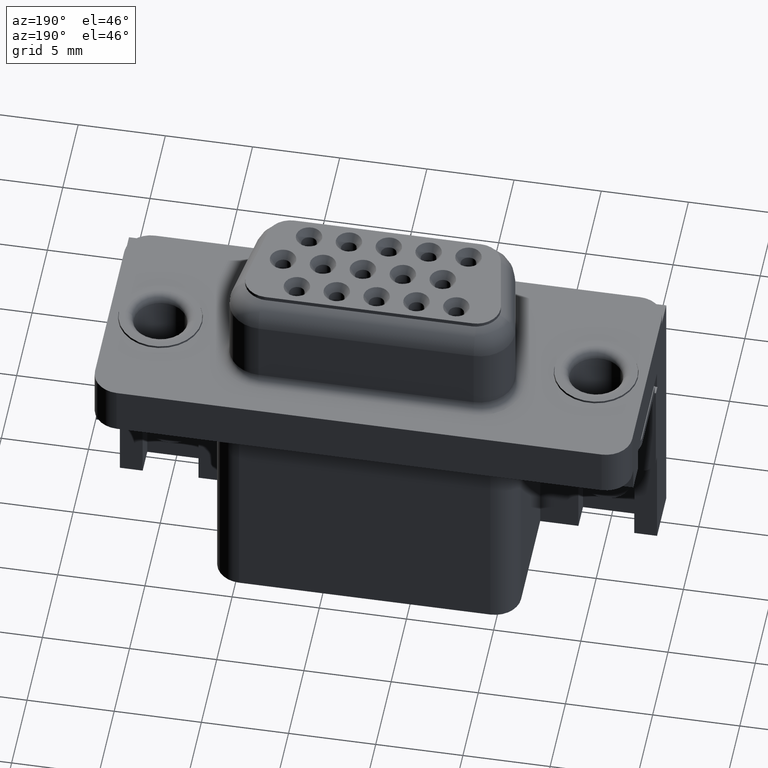
[diagram: clean part render]
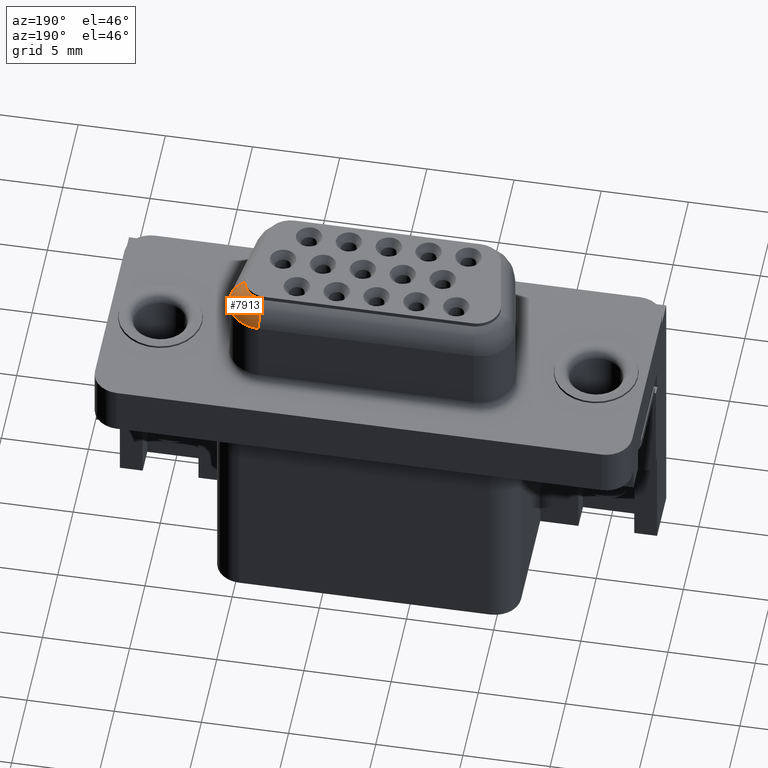
[diagram: same view with one face highlighted and labeled with its STEP entity id]
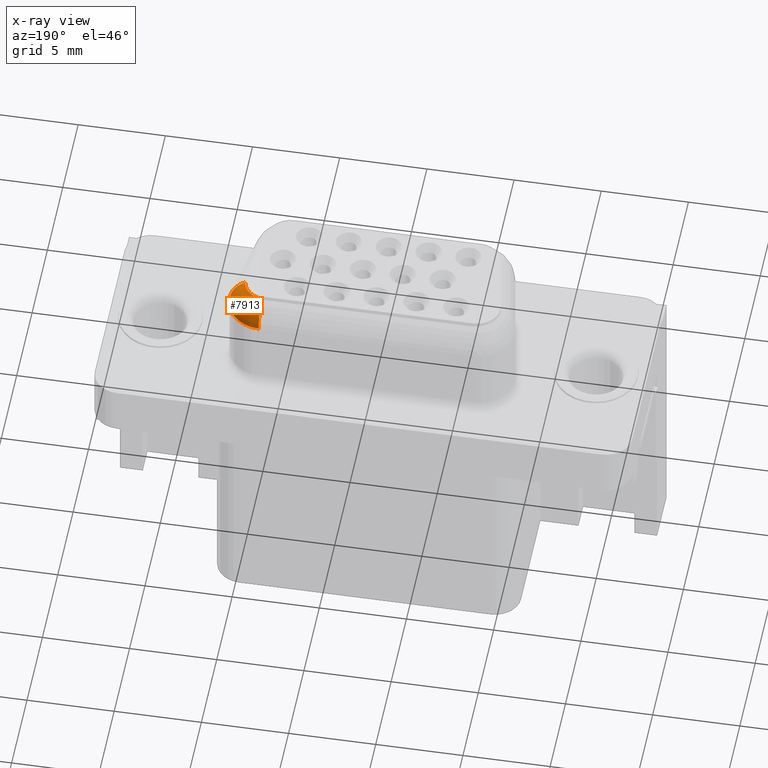
[diagram: x-ray of the same camera — body ghosted, the highlighted face saturated]
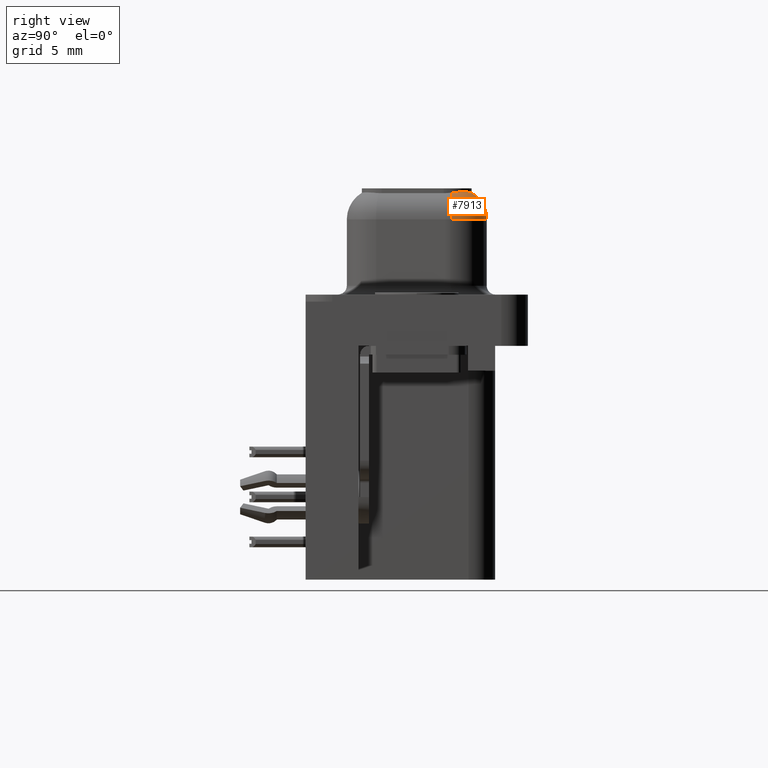
[diagram: same view with one face highlighted and labeled with its STEP entity id]
A machine part, auxiliary view. The second image highlights one B-rep face of the part: STEP entity #7913.
The next image is the same camera in x-ray: the body ghosted, the highlighted face saturated — about 0% of this face is hidden behind the body in this view.
A second angle (right view) of the same face is appended — the face is thin or edge-on in the first view.
In plain terms, the highlighted toroidal blend (fillet) surface has major radius 0.25 mm and minor (blend) radius 1.75 mm.
Its self-contained STEP definition (entity closure, byte-faithful):
#230 = CARTESIAN_POINT ( 'NONE',  ( 18.65999999999998900, 1.950000000000002400, 4.650000000000000400 ) ) ;
#4013 = AXIS2_PLACEMENT_3D ( 'NONE', #7932, #25004, #10392 ) ;
#4806 = CARTESIAN_POINT ( 'NONE',  ( 18.65999999999998900, 3.085102992281872700, 6.159666417806821700 ) ) ;
#5673 = EDGE_LOOP ( 'NONE', ( #17658, #22530, #14702, #21650 ) ) ;
#5983 = TOROIDAL_SURFACE ( 'NONE', #16694, 0.2499999999999965300, 1.750000000000000000 ) ;
#6279 = VERTEX_POINT ( 'NONE', #9787 ) ;
#7494 = CARTESIAN_POINT ( 'NONE',  ( 19.79510299228195800, 1.949999999999924700, 6.159666417807128100 ) ) ;
#7650 = DIRECTION ( 'NONE',  ( -1.000000000000000000, 0.0000000000000000000, 0.0000000000000000000 ) ) ;
#7907 = DIRECTION ( 'NONE',  ( -1.224646799147353200E-016, 1.000000000000000000, 0.0000000000000000000 ) ) ;
#7913 = ADVANCED_FACE ( 'NONE', ( #12491 ), #5983, .T. ) ;
#7932 = CARTESIAN_POINT ( 'NONE',  ( 18.65999999999998900, 2.199999999999998800, 4.650000000000000400 ) ) ;
#8097 = EDGE_CURVE ( 'NONE', #26854, #6279, #15173, .T. ) ;
#9213 = CARTESIAN_POINT ( 'NONE',  ( 18.65999999999998900, 3.085102992281872700, 6.159666417806821700 ) ) ;
#9722 = CARTESIAN_POINT ( 'NONE',  ( 19.19625179510389800, 2.890726411098024000, 6.194329329162996200 ) ) ;
#9756 = EDGE_CURVE ( 'NONE', #30056, #26854, #15522, .T. ) ;
#9787 = CARTESIAN_POINT ( 'NONE',  ( 20.65999999999998200, 1.950000000000002600, 4.650000000000000400 ) ) ;
#10392 = DIRECTION ( 'NONE',  ( 0.0000000000000000000, 0.0000000000000000000, 1.000000000000000000 ) ) ;
#11033 = CARTESIAN_POINT ( 'NONE',  ( 18.65999999999998900, 1.950000000000002400, 4.650000000000000400 ) ) ;
#11481 = AXIS2_PLACEMENT_3D ( 'NONE', #22545, #7907, #24981 ) ;
#12120 = CARTESIAN_POINT ( 'NONE',  ( 18.65999999999998900, 3.949999999999998800, 4.650000000000000400 ) ) ;
#12170 = CARTESIAN_POINT ( 'NONE',  ( 19.61827127832650700, 2.500965297078816500, 6.197504039113223200 ) ) ;
#12491 = FACE_OUTER_BOUND ( 'NONE', #5673, .T. ) ;
#13515 = DIRECTION ( 'NONE',  ( -1.000000000000000000, 0.0000000000000000000, 0.0000000000000000000 ) ) ;
#14638 = CARTESIAN_POINT ( 'NONE',  ( 19.79510299228195800, 1.949999999999924700, 6.159666417807128100 ) ) ;
#14702 = ORIENTED_EDGE ( 'NONE', *, *, #8097, .F. ) ;
#15173 = CIRCLE ( 'NONE', #28965, 1.999999999999994900 ) ;
#15522 = CIRCLE ( 'NONE', #4013, 1.749999999999999800 ) ;
#16322 = EDGE_CURVE ( 'NONE', #28643, #6279, #20110, .T. ) ;
#16694 = AXIS2_PLACEMENT_3D ( 'NONE', #230, #19745, #7650 ) ;
#17353 = EDGE_CURVE ( 'NONE', #30056, #28643, #28793, .T. ) ;
#17658 = ORIENTED_EDGE ( 'NONE', *, *, #17353, .T. ) ;
#19464 = CARTESIAN_POINT ( 'NONE',  ( 18.80270600932036000, 3.063725464084370700, 6.172199858275532400 ) ) ;
#19745 = DIRECTION ( 'NONE',  ( -0.0000000000000000000, -0.0000000000000000000, -1.000000000000000000 ) ) ;
#20110 = CIRCLE ( 'NONE', #11481, 1.750000000000001600 ) ;
#21650 = ORIENTED_EDGE ( 'NONE', *, *, #9756, .F. ) ;
#22530 = ORIENTED_EDGE ( 'NONE', *, *, #16322, .T. ) ;
#22545 = CARTESIAN_POINT ( 'NONE',  ( 18.90999999999998600, 1.950000000000002400, 4.650000000000000400 ) ) ;
#24328 = CARTESIAN_POINT ( 'NONE',  ( 18.93850469372288000, 3.020573377989434600, 6.181528888010065600 ) ) ;
#24981 = DIRECTION ( 'NONE',  ( -1.000000000000000000, -1.239088197126289600E-016, 0.0000000000000000000 ) ) ;
#25004 = DIRECTION ( 'NONE',  ( -1.000000000000000000, 0.0000000000000000000, 0.0000000000000000000 ) ) ;
#26790 = CARTESIAN_POINT ( 'NONE',  ( 19.31258594912365100, 2.806578206883010300, 6.197496872207630700 ) ) ;
#26854 = VERTEX_POINT ( 'NONE', #12120 ) ;
#28149 = DIRECTION ( 'NONE',  ( -0.0000000000000000000, -0.0000000000000000000, -1.000000000000000000 ) ) ;
#28643 = VERTEX_POINT ( 'NONE', #7494 ) ;
#28793 = B_SPLINE_CURVE_WITH_KNOTS ( 'NONE', 3,
 ( #4806, #19464, #24328, #9722, #26790, #12170, #29273, #14638 ),
 .UNSPECIFIED., .F., .F.,
 ( 4, 2, 2, 4 ),
 ( 2.001126706801159000E-007, 0.0004285692557467578200, 0.0008569383988228354500, 0.001713676684974990900 ),
 .UNSPECIFIED. ) ;
#28965 = AXIS2_PLACEMENT_3D ( 'NONE', #11033, #28149, #13515 ) ;
#29273 = CARTESIAN_POINT ( 'NONE',  ( 19.75272650463321600, 2.232884877310595600, 6.184511347506521000 ) ) ;
#30056 = VERTEX_POINT ( 'NONE', #9213 ) ;